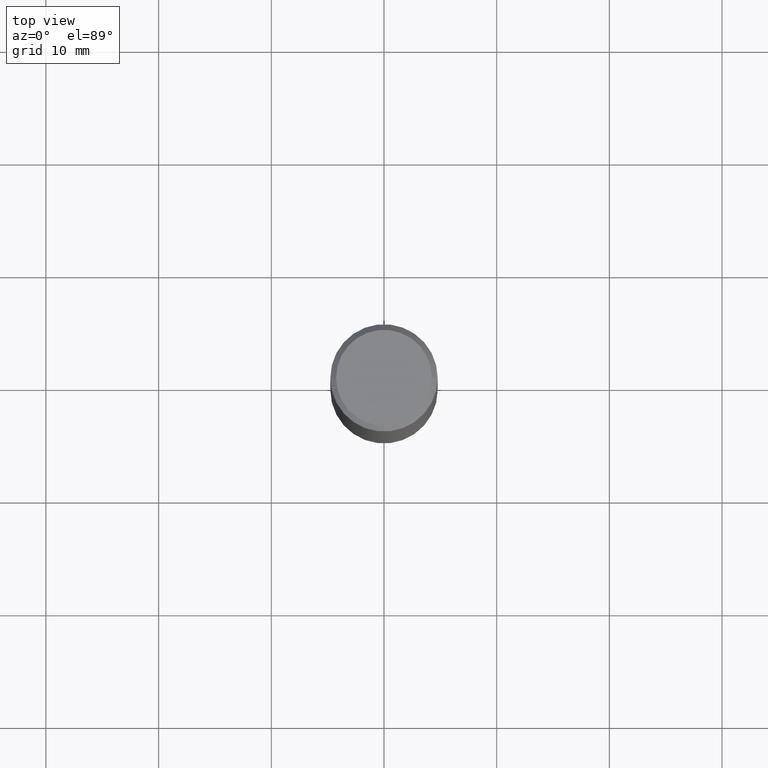
[diagram: clean part render]
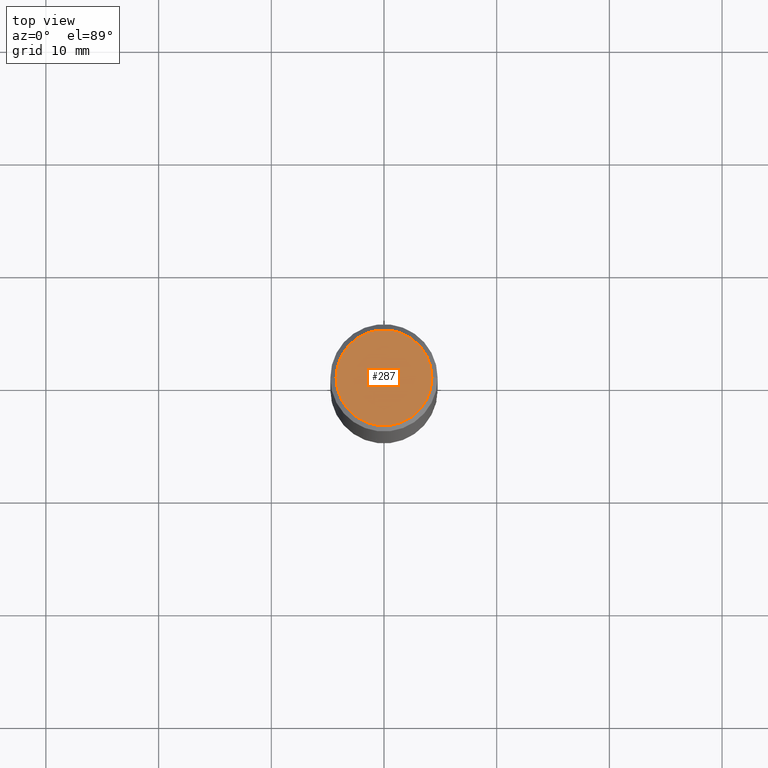
[diagram: same view with one face highlighted and labeled with its STEP entity id]
A machine part, top view. The second image highlights one B-rep face of the part: STEP entity #287.
In plain terms, the highlighted planar face has unit normal (0, -0, -1).
Its self-contained STEP definition (entity closure, byte-faithful):
#11 = CARTESIAN_POINT ( 'NONE',  ( -0.1675000000000000100, 1.204561061900881047E-15, 2.134256245049375487E-17 ) ) ;
#32 = EDGE_CURVE ( 'NONE', #128, #264, #251, .T. ) ;
#56 = ORIENTED_EDGE ( 'NONE', *, *, #32, .T. ) ;
#64 = PLANE ( 'NONE',  #281 ) ;
#96 = FACE_OUTER_BOUND ( 'NONE', #385, .T. ) ;
#102 = CARTESIAN_POINT ( 'NONE',  ( 1.169646248512449595E-15, 0.1675000000000000100, -5.741518430309759002E-16 ) ) ;
#103 = DIRECTION ( 'NONE',  ( 1.000000000000000000, -6.982962677686266711E-15, 4.875370901645440628E-29 ) ) ;
#122 = CARTESIAN_POINT ( 'NONE',  ( -5.219257071676098903E-46, 7.451715851902235727E-32, 2.134256245050205639E-17 ) ) ;
#128 = VERTEX_POINT ( 'NONE', #403 ) ;
#137 = DIRECTION ( 'NONE',  ( -1.000000000000000000, 6.982962677686265922E-15, -4.876176775795935793E-29 ) ) ;
#138 = CARTESIAN_POINT ( 'NONE',  ( -5.219257071676098903E-46, 7.451715851902235727E-32, 2.134256245050205639E-17 ) ) ;
#172 = EDGE_CURVE ( 'NONE', #264, #128, #389, .T. ) ;
#205 = DIRECTION ( 'NONE',  ( -2.445468806185136597E-29, 3.491481338843145583E-15, 1.000000000000000000 ) ) ;
#229 = AXIS2_PLACEMENT_3D ( 'NONE', #122, #375, #256 ) ;
#236 = AXIS2_PLACEMENT_3D ( 'NONE', #138, #205, #103 ) ;
#251 = CIRCLE ( 'NONE', #236, 0.1675000000000000100 ) ;
#256 = DIRECTION ( 'NONE',  ( 1.000000000000000000, -6.982962677686266711E-15, 4.875370901645440628E-29 ) ) ;
#264 = VERTEX_POINT ( 'NONE', #11 ) ;
#270 = ORIENTED_EDGE ( 'NONE', *, *, #172, .T. ) ;
#271 = DIRECTION ( 'NONE',  ( 2.438088387897960049E-29, -3.491481338843145188E-15, -1.000000000000000000 ) ) ;
#281 = AXIS2_PLACEMENT_3D ( 'NONE', #102, #271, #137 ) ;
#287 = ADVANCED_FACE ( 'NONE', ( #96 ), #64, .F. ) ;
#375 = DIRECTION ( 'NONE',  ( -2.445468806185136597E-29, 3.491481338843145583E-15, 1.000000000000000000 ) ) ;
#385 = EDGE_LOOP ( 'NONE', ( #270, #56 ) ) ;
#389 = CIRCLE ( 'NONE', #229, 0.1675000000000000100 ) ;
#403 = CARTESIAN_POINT ( 'NONE',  ( 0.1675000000000000100, -1.252653207992878486E-15, 2.134256245051052740E-17 ) ) ;